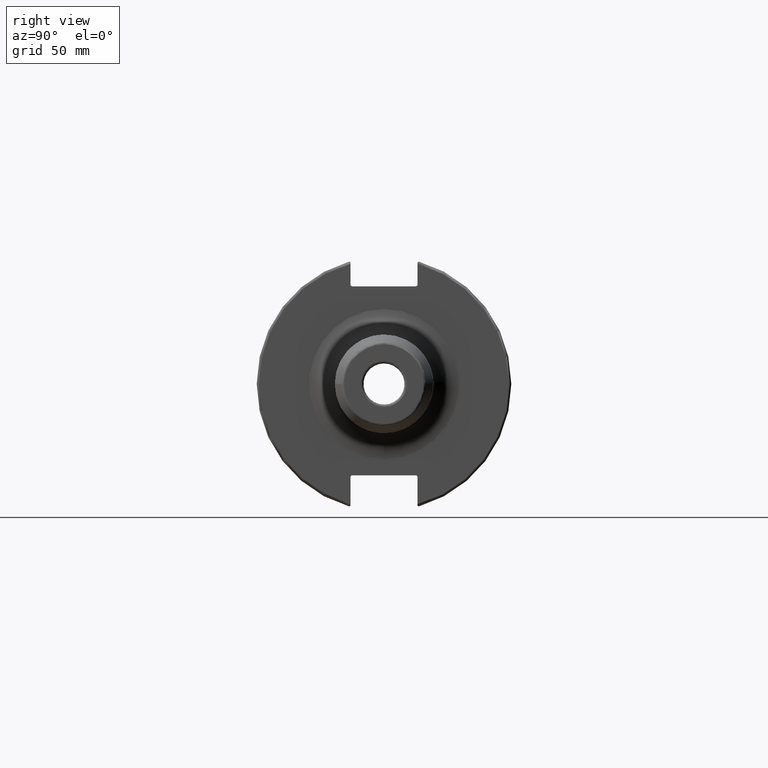
[diagram: clean part render]
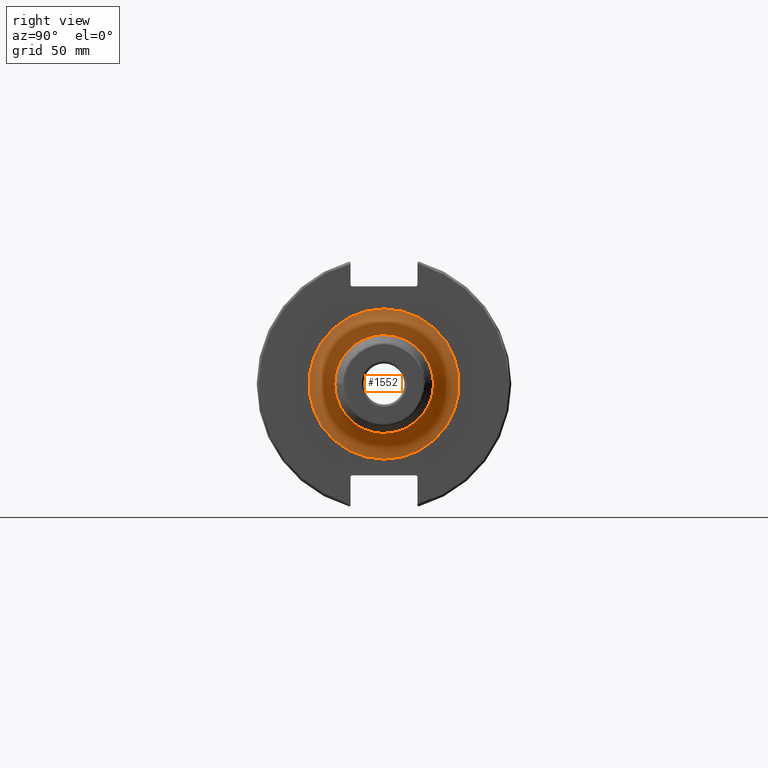
[diagram: same view with one face highlighted and labeled with its STEP entity id]
A machine part, right view. The second image highlights one B-rep face of the part: STEP entity #1552.
In plain terms, the highlighted toroidal blend (fillet) surface has major radius 29.05 mm and minor (blend) radius 10 mm.
Its self-contained STEP definition (entity closure, byte-faithful):
#53=TOROIDAL_SURFACE('',#1669,29.05,10.);
#121=FACE_OUTER_BOUND('',#211,.T.);
#211=EDGE_LOOP('',(#1058,#1059,#1060,#1061,#1062));
#514=CIRCLE('',#1670,19.05);
#515=CIRCLE('',#1671,10.);
#516=CIRCLE('',#1672,29.05);
#517=CIRCLE('',#1673,19.05);
#646=VERTEX_POINT('',#2383);
#647=VERTEX_POINT('',#2384);
#648=VERTEX_POINT('',#2386);
#812=EDGE_CURVE('',#646,#647,#514,.T.);
#813=EDGE_CURVE('',#647,#648,#515,.T.);
#814=EDGE_CURVE('',#648,#648,#516,.T.);
#815=EDGE_CURVE('',#647,#646,#517,.T.);
#1058=ORIENTED_EDGE('',*,*,#812,.T.);
#1059=ORIENTED_EDGE('',*,*,#813,.T.);
#1060=ORIENTED_EDGE('',*,*,#814,.T.);
#1061=ORIENTED_EDGE('',*,*,#813,.F.);
#1062=ORIENTED_EDGE('',*,*,#815,.T.);
#1552=ADVANCED_FACE('',(#121),#53,.F.);
#1669=AXIS2_PLACEMENT_3D('',#2382,#1859,#1860);
#1670=AXIS2_PLACEMENT_3D('',#2385,#1861,#1862);
#1671=AXIS2_PLACEMENT_3D('',#2387,#1863,#1864);
#1672=AXIS2_PLACEMENT_3D('',#2388,#1865,#1866);
#1673=AXIS2_PLACEMENT_3D('',#2389,#1867,#1868);
#1859=DIRECTION('center_axis',(-1.,0.,0.));
#1860=DIRECTION('ref_axis',(0.,0.,1.));
#1861=DIRECTION('center_axis',(-1.,0.,0.));
#1862=DIRECTION('ref_axis',(0.,-1.,-1.22464679914735E-16));
#1863=DIRECTION('center_axis',(0.,-1.,1.22464679914735E-16));
#1864=DIRECTION('ref_axis',(0.,-1.22464679914735E-16,-1.));
#1865=DIRECTION('center_axis',(1.,0.,0.));
#1866=DIRECTION('ref_axis',(0.,-1.,-1.22464679914735E-16));
#1867=DIRECTION('center_axis',(-1.,0.,0.));
#1868=DIRECTION('ref_axis',(0.,-1.,-1.22464679914735E-16));
#2382=CARTESIAN_POINT('Origin',(29.05,0.,0.));
#2383=CARTESIAN_POINT('',(29.05,-19.05,-2.33295215237571E-15));
#2384=CARTESIAN_POINT('',(29.05,-2.33295215237571E-15,-19.05));
#2385=CARTESIAN_POINT('Origin',(29.05,0.,0.));
#2386=CARTESIAN_POINT('',(19.05,-3.55759895152306E-15,-29.05));
#2387=CARTESIAN_POINT('Origin',(29.05,-3.55759895152306E-15,-29.05));
#2388=CARTESIAN_POINT('Origin',(19.05,0.,0.));
#2389=CARTESIAN_POINT('Origin',(29.05,0.,0.));